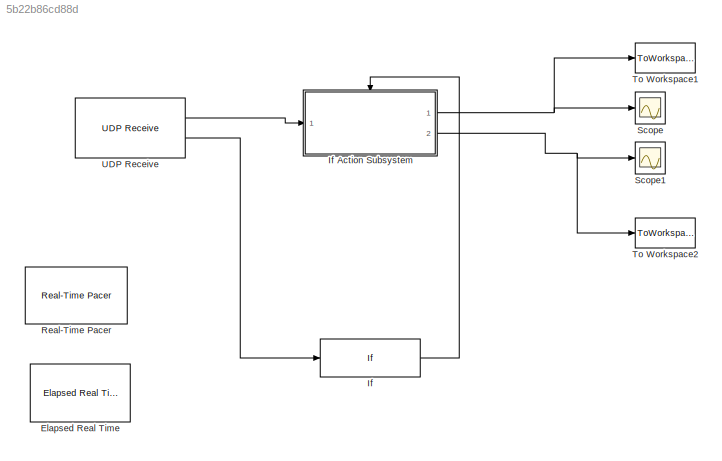
MODEL slx_5b22b86cd88d
KIND model
CONFIG AbsTol = auto
CONFIG FixedStep = auto
CONFIG MaxStep = auto
CONFIG MinStep = auto
CONFIG RelTol = 1e-3
CONFIG SampleTimeConstraint = Unconstrained
CONFIG Solver = ode45
CONFIG SolverMode = Auto
CONFIG SolverName = ode45
CONFIG StartTime = 0.0
CONFIG StopTime = inf
BLOCK [Reference] Elapsed Real Time  REF=realtime_pacer_lib/Elapsed Real Time
  Ports = [0, 1]
  SourceBlock = realtime_pacer_lib/Elapsed Real Time
  SourceType = RealTime_Elapsed
BLOCK [If] If
  Ports = [1, 1]
  ShowElse = off
  ZeroCross = off
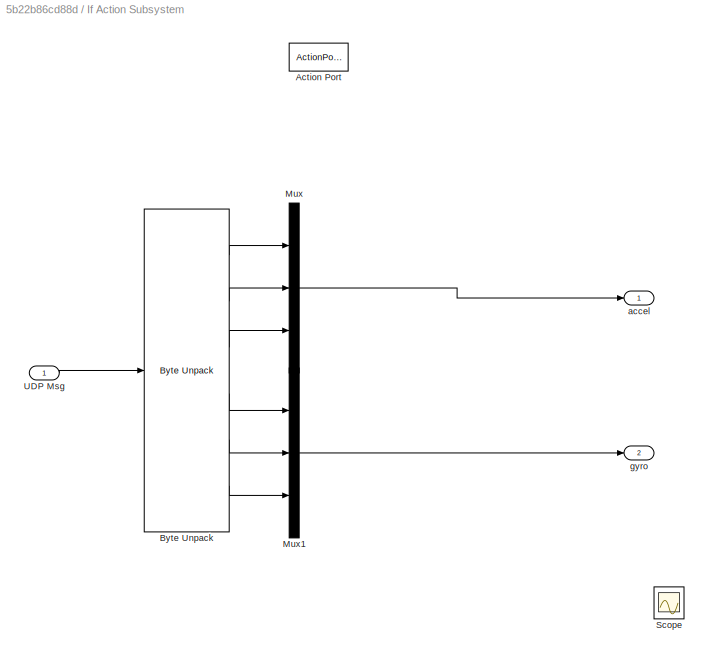
BLOCK [SubSystem] If Action Subsystem
  Ports = [1, 2, 0, 0, 0, 0, 0, 1]
  RequestExecContextInheritance = off
  TreatAsAtomicUnit = on
BLOCK [ActionPort] If Action Subsystem/Action Port
  ActionType = then
  InitializeStates = reset
BLOCK [Reference] If Action Subsystem/Byte Unpack  REF=etargetslib/Byte Unpack
  Ports = [1, 6]
  SourceBlock = etargetslib/Byte Unpack
  SourceType = Byte Unpack
  byteAlign = 2
  datatypes = {'double','double','double','double','double','double'}
  dimensions = {1,1,1,1,1,1}
BLOCK [Mux] If Action Subsystem/Mux
  DisplayOption = bar
  Inputs = 3
  Ports = [3, 1]
BLOCK [Mux] If Action Subsystem/Mux1
  DisplayOption = bar
  Inputs = 3
  Ports = [3, 1]
BLOCK [Scope] If Action Subsystem/Scope
  Floating = off
  NumInputPorts = 1
  Ports = [1]
  SaveName = ScopeData2
BLOCK [Inport] If Action Subsystem/UDP Msg
  IconDisplay = Port number
BLOCK [Outport] If Action Subsystem/accel
  IconDisplay = Port number
BLOCK [Outport] If Action Subsystem/gyro
  IconDisplay = Port number
  Port = 2
BLOCK [Reference] Real-Time Pacer  REF=realtime_pacer_lib/Real-Time Pacer
  Ports = []
  SourceBlock = realtime_pacer_lib/Real-Time Pacer
  SourceType = RealTime_Pacer
  simTimePerRealTime = 1
BLOCK [Scope] Scope
  Floating = off
  NumInputPorts = 1
  Ports = [1]
  SaveToWorkspace = on
  YMax = 1.5
  YMin = -1.25
  ZoomMode = xonly
BLOCK [Scope] Scope1
  Floating = off
  NumInputPorts = 1
  Ports = [1]
  SaveName = ScopeData1
  YMax = 300
  YMin = -225
BLOCK [ToWorkspace] To Workspace1
  FixptAsFi = on
  MaxDataPoints = inf
  Ports = [1]
  SampleTime = -1
  Save2DSignal = 3-D array (concatenate along third dimension)
  SaveFormat = Timeseries
  VariableName = accel_data
BLOCK [ToWorkspace] To Workspace2
  FixptAsFi = on
  MaxDataPoints = inf
  Ports = [1]
  SampleTime = -1
  Save2DSignal = 3-D array (concatenate along third dimension)
  SaveFormat = Timeseries
  VariableName = gyro_data
BLOCK [Reference] UDP Receive  REF=dspnetwork/UDP Receive
  Ports = [0, 2]
  SourceBlock = dspnetwork/UDP Receive
  SourceType = UDP Receive
  blockPlatform = ZYNQ
  blockingTime = .0001
  dims = 48
  isVarSize = off
  localPort = 25001
  localURL = '0.0.0.0'
  recvBufferSize = 8192
  remotePort = -1
  remoteURL = '169.254.1.10'
  sampletime = .001
  showBlockingTime = on
  signalDatatype = uint8
LINE If Action Subsystem/Byte Unpack:1 -> If Action Subsystem/Mux:1
LINE If Action Subsystem/Byte Unpack:2 -> If Action Subsystem/Mux:2
LINE If Action Subsystem/Byte Unpack:3 -> If Action Subsystem/Mux:3
LINE If Action Subsystem/Byte Unpack:4 -> If Action Subsystem/Mux1:1
LINE If Action Subsystem/Byte Unpack:5 -> If Action Subsystem/Mux1:2
LINE If Action Subsystem/Byte Unpack:6 -> If Action Subsystem/Mux1:3
LINE If Action Subsystem/Mux1:1 -> If Action Subsystem/gyro:1
LINE If Action Subsystem/Mux:1 -> If Action Subsystem/accel:1
LINE If Action Subsystem/UDP Msg:1 -> If Action Subsystem/Byte Unpack:1
NET If Action Subsystem:1 -> Scope:1, To Workspace1:1
NET If Action Subsystem:2 -> Scope1:1, To Workspace2:1
LINE If:1 -> If Action Subsystem:ifaction
LINE UDP Receive:1 -> If Action Subsystem:1
LINE UDP Receive:2 -> If:1
note: NET lines group one-source signal fan-out (src -> all destinations, sorted); 1:1 wires keep LINE
